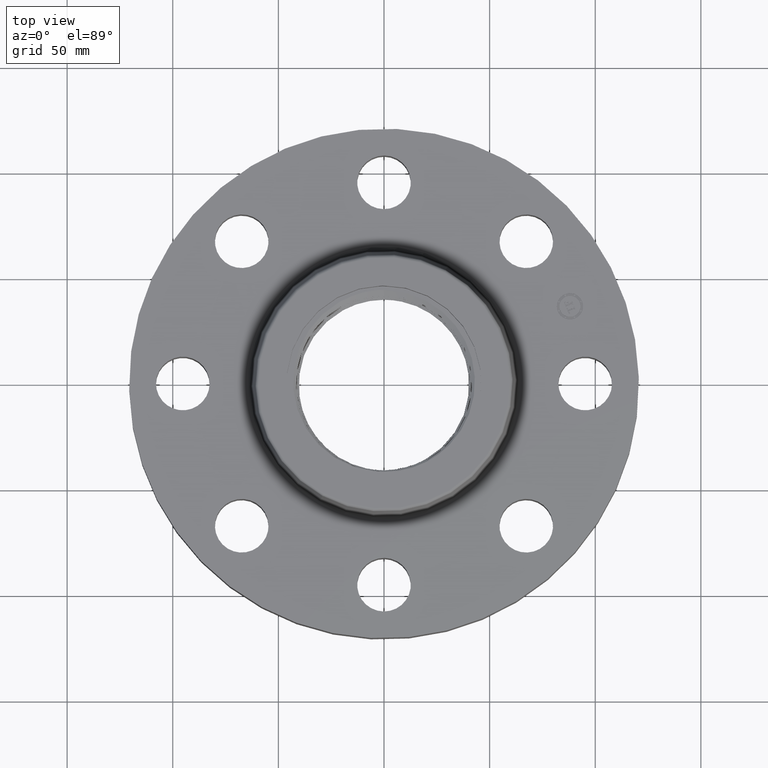
[diagram: clean part render]
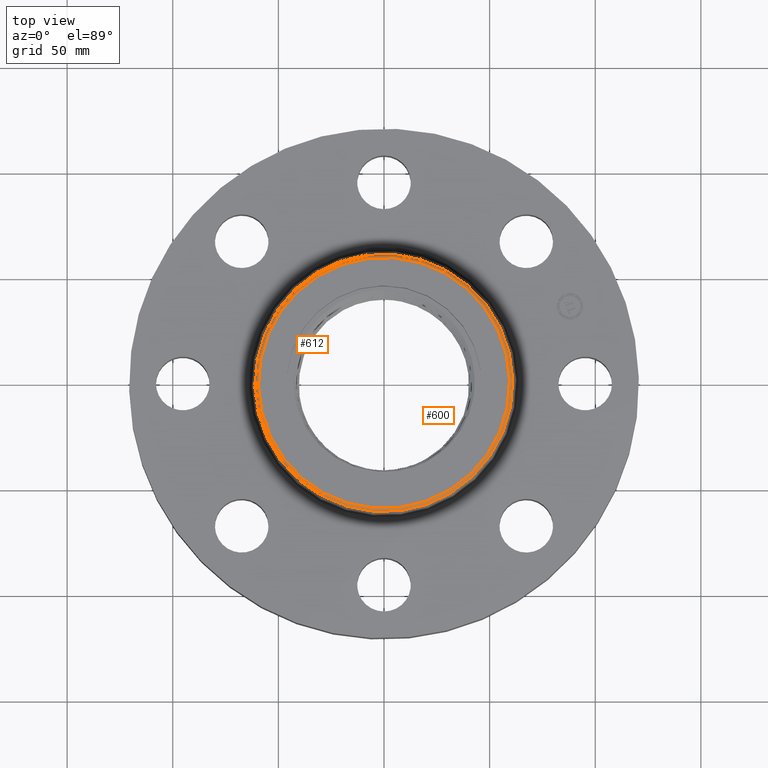
[diagram: same view with one multi-face feature highlighted, each face labeled with its STEP entity id]
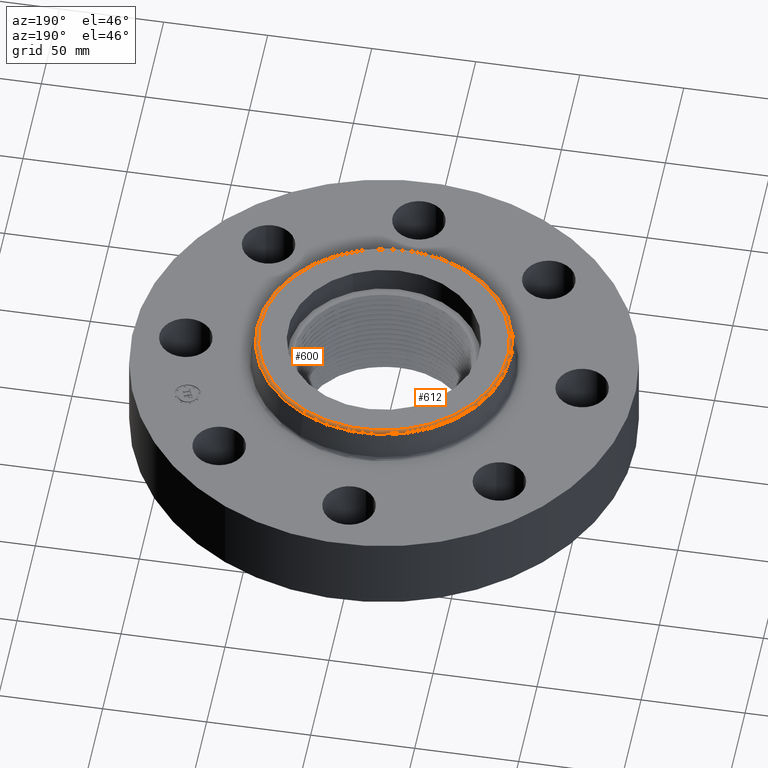
[diagram: same view with one multi-face feature highlighted, each face labeled with its STEP entity id]
A machine part, top view. The highlighted faces form ONE feature: a constant-radius fillet chain: 2 tangent blend faces with common blend radius 1.524 mm. The faces share edges in the B-rep.
A second angle (auxiliary view) of the same feature is appended — it is thin or edge-on in the first view.
Their STEP definitions:
[1] entity #612 (Torus):
#560=AXIS2_PLACEMENT_3D('Circle Axis2P3D',#558,#559,$) ;
#573=AXIS2_PLACEMENT_3D('Torus Axis2P3D',#570,#571,#572) ;
#577=AXIS2_PLACEMENT_3D('Circle Axis2P3D',#575,#576,$) ;
#591=AXIS2_PLACEMENT_3D('Circle Axis2P3D',#589,#590,$) ;
#603=AXIS2_PLACEMENT_3D('Circle Axis2P3D',#601,#602,$) ;
#536=CARTESIAN_POINT('Vertex',(1.15034311043,2.1056889394,2.07041889067)) ;
#543=CARTESIAN_POINT('Vertex',(-1.15034311043,-2.1056889394,2.07041889067)) ;
#558=CARTESIAN_POINT('Axis2P3D Location',(0.,0.,2.07041889067)) ;
#570=CARTESIAN_POINT('Axis2P3D Location',(0.,0.,2.06000000001)) ;
#575=CARTESIAN_POINT('Axis2P3D Location',(1.12201459119,2.05383393275,2.06000000001)) ;
#579=CARTESIAN_POINT('Vertex',(1.12201459119,2.05383393275,2.12000000001)) ;
#586=CARTESIAN_POINT('Vertex',(-1.12201459119,-2.05383393275,2.12000000001)) ;
#589=CARTESIAN_POINT('Axis2P3D Location',(-1.12201459119,-2.05383393275,2.06000000001)) ;
#601=CARTESIAN_POINT('Axis2P3D Location',(0.,0.,2.12000000001)) ;
#559=DIRECTION('Axis2P3D Direction',(0.,0.,-0.0393700787402)) ;
#571=DIRECTION('Axis2P3D Direction',(0.,0.,-0.0393700787402)) ;
#572=DIRECTION('Axis2P3D XDirection',(-0.0188750212049,-0.0345504945626,0.)) ;
#576=DIRECTION('Axis2P3D Direction',(-0.0345504945626,0.0188750212049,0.)) ;
#590=DIRECTION('Axis2P3D Direction',(0.0345504945626,-0.0188750212049,0.)) ;
#602=DIRECTION('Axis2P3D Direction',(0.,0.,-0.0393700787402)) ;
#607=ORIENTED_EDGE('',*,*,#562,.F.) ;
#608=ORIENTED_EDGE('',*,*,#593,.T.) ;
#609=ORIENTED_EDGE('',*,*,#605,.T.) ;
#610=ORIENTED_EDGE('',*,*,#581,.F.) ;
#612=ADVANCED_FACE('PartBody',(#611),#574,.T.) ;
#561=CIRCLE('generated circle',#560,2.39941975928) ;
#578=CIRCLE('generated circle',#577,0.0600000000002) ;
#592=CIRCLE('generated circle',#591,0.0600000000002) ;
#604=CIRCLE('generated circle',#603,2.3403312941) ;
#574=TOROIDAL_SURFACE('homeo Torus',#573,2.3403312941,0.0600000000002) ;
#562=EDGE_CURVE('',#544,#537,#561,.T.) ;
#581=EDGE_CURVE('',#537,#580,#578,.F.) ;
#593=EDGE_CURVE('',#544,#587,#592,.F.) ;
#605=EDGE_CURVE('',#587,#580,#604,.T.) ;
#606=EDGE_LOOP('',(#607,#608,#609,#610)) ;
#611=FACE_OUTER_BOUND('',#606,.T.) ;
#537=VERTEX_POINT('',#536) ;
#544=VERTEX_POINT('',#543) ;
#580=VERTEX_POINT('',#579) ;
#587=VERTEX_POINT('',#586) ;
[2] entity #600 (Torus):
#541=AXIS2_PLACEMENT_3D('Circle Axis2P3D',#539,#540,$) ;
#573=AXIS2_PLACEMENT_3D('Torus Axis2P3D',#570,#571,#572) ;
#577=AXIS2_PLACEMENT_3D('Circle Axis2P3D',#575,#576,$) ;
#584=AXIS2_PLACEMENT_3D('Circle Axis2P3D',#582,#583,$) ;
#591=AXIS2_PLACEMENT_3D('Circle Axis2P3D',#589,#590,$) ;
#536=CARTESIAN_POINT('Vertex',(1.15034311043,2.1056889394,2.07041889067)) ;
#539=CARTESIAN_POINT('Axis2P3D Location',(0.,0.,2.07041889067)) ;
#543=CARTESIAN_POINT('Vertex',(-1.15034311043,-2.1056889394,2.07041889067)) ;
#570=CARTESIAN_POINT('Axis2P3D Location',(0.,0.,2.06000000001)) ;
#575=CARTESIAN_POINT('Axis2P3D Location',(1.12201459119,2.05383393275,2.06000000001)) ;
#579=CARTESIAN_POINT('Vertex',(1.12201459119,2.05383393275,2.12000000001)) ;
#582=CARTESIAN_POINT('Axis2P3D Location',(0.,0.,2.12000000001)) ;
#586=CARTESIAN_POINT('Vertex',(-1.12201459119,-2.05383393275,2.12000000001)) ;
#589=CARTESIAN_POINT('Axis2P3D Location',(-1.12201459119,-2.05383393275,2.06000000001)) ;
#540=DIRECTION('Axis2P3D Direction',(0.,0.,-0.0393700787402)) ;
#571=DIRECTION('Axis2P3D Direction',(0.,0.,-0.0393700787402)) ;
#572=DIRECTION('Axis2P3D XDirection',(-0.0188750212049,-0.0345504945626,0.)) ;
#576=DIRECTION('Axis2P3D Direction',(-0.0345504945626,0.0188750212049,0.)) ;
#583=DIRECTION('Axis2P3D Direction',(0.,0.,-0.0393700787402)) ;
#590=DIRECTION('Axis2P3D Direction',(0.0345504945626,-0.0188750212049,0.)) ;
#595=ORIENTED_EDGE('',*,*,#545,.F.) ;
#596=ORIENTED_EDGE('',*,*,#581,.T.) ;
#597=ORIENTED_EDGE('',*,*,#588,.T.) ;
#598=ORIENTED_EDGE('',*,*,#593,.F.) ;
#600=ADVANCED_FACE('PartBody',(#599),#574,.T.) ;
#542=CIRCLE('generated circle',#541,2.39941975928) ;
#578=CIRCLE('generated circle',#577,0.0600000000002) ;
#585=CIRCLE('generated circle',#584,2.3403312941) ;
#592=CIRCLE('generated circle',#591,0.0600000000002) ;
#574=TOROIDAL_SURFACE('homeo Torus',#573,2.3403312941,0.0600000000002) ;
#545=EDGE_CURVE('',#537,#544,#542,.T.) ;
#581=EDGE_CURVE('',#537,#580,#578,.F.) ;
#588=EDGE_CURVE('',#580,#587,#585,.T.) ;
#593=EDGE_CURVE('',#544,#587,#592,.F.) ;
#594=EDGE_LOOP('',(#595,#596,#597,#598)) ;
#599=FACE_OUTER_BOUND('',#594,.T.) ;
#537=VERTEX_POINT('',#536) ;
#544=VERTEX_POINT('',#543) ;
#580=VERTEX_POINT('',#579) ;
#587=VERTEX_POINT('',#586) ;